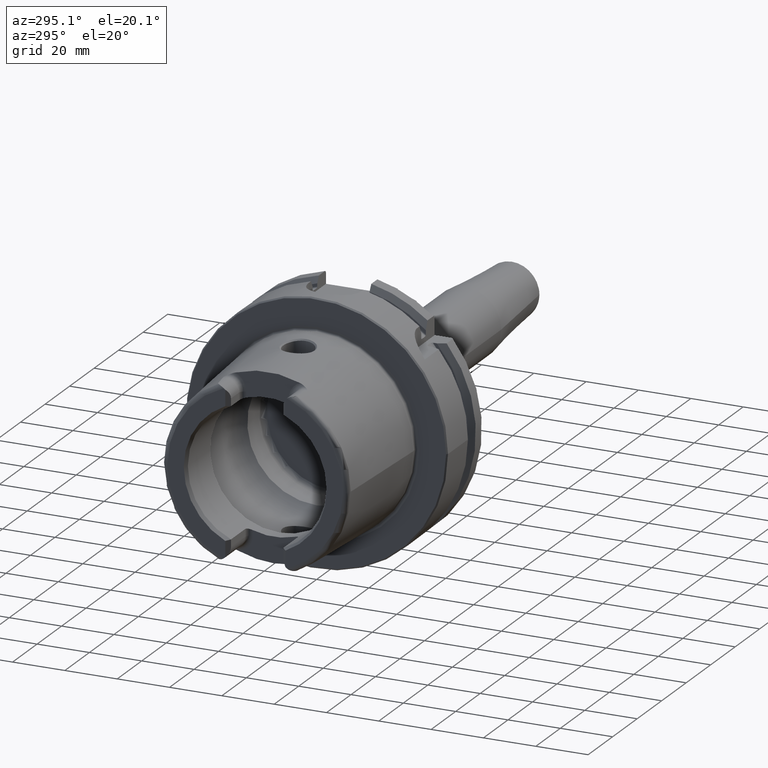
[diagram: clean part render]
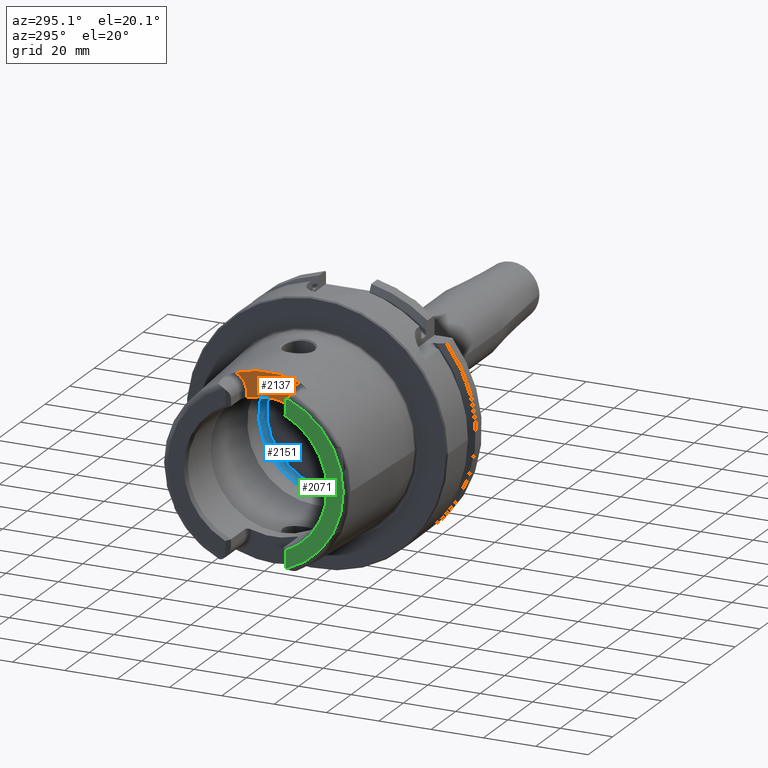
[diagram: same view with three faces highlighted in distinct colors, each labeled with its STEP entity id]
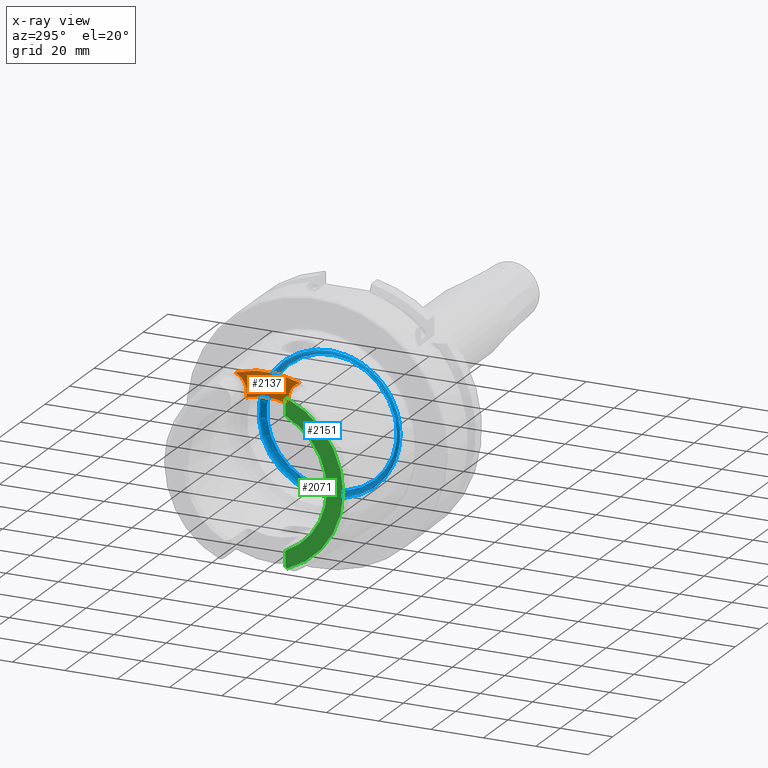
[diagram: x-ray of the same camera — body ghosted, the three highlighted faces saturated]
A machine part, auxiliary view with three faces highlighted in distinct colors.
The next image is the same camera in x-ray (body ghosted, the three faces saturated) — at least one of them is partly hidden behind the body in this view.
Their STEP definitions:

[orange] entity #2137 — the highlighted planar face has unit normal (-1, 0, 0).
#129=PLANE('',#2399);
#307=FACE_OUTER_BOUND('',#441,.T.);
#441=EDGE_LOOP('',(#1876,#1877,#1878,#1879,#1880,#1881));
#565=LINE('',#4469,#673);
#566=LINE('',#4498,#674);
#673=VECTOR('',#2915,10.);
#674=VECTOR('',#2928,10.);
#742=CIRCLE('',#2286,36.003493987976);
#785=CIRCLE('',#2372,6.88);
#787=CIRCLE('',#2375,6.88);
#799=CIRCLE('',#2400,26.5);
#922=VERTEX_POINT('',#3647);
#923=VERTEX_POINT('',#3664);
#1014=VERTEX_POINT('',#4466);
#1015=VERTEX_POINT('',#4468);
#1016=VERTEX_POINT('',#4483);
#1017=VERTEX_POINT('',#4487);
#1163=EDGE_CURVE('',#922,#923,#742,.T.);
#1301=EDGE_CURVE('',#1014,#1015,#565,.T.);
#1303=EDGE_CURVE('',#923,#1014,#785,.T.);
#1305=EDGE_CURVE('',#1016,#922,#787,.T.);
#1307=EDGE_CURVE('',#1017,#1016,#566,.T.);
#1328=EDGE_CURVE('',#1015,#1017,#799,.T.);
#1876=ORIENTED_EDGE('',*,*,#1303,.F.);
#1877=ORIENTED_EDGE('',*,*,#1163,.F.);
#1878=ORIENTED_EDGE('',*,*,#1305,.F.);
#1879=ORIENTED_EDGE('',*,*,#1307,.F.);
#1880=ORIENTED_EDGE('',*,*,#1328,.F.);
#1881=ORIENTED_EDGE('',*,*,#1301,.F.);
#2137=ADVANCED_FACE('',(#307),#129,.T.);
#2286=AXIS2_PLACEMENT_3D('',#3665,#2696,#2697);
#2372=AXIS2_PLACEMENT_3D('',#4481,#2918,#2919);
#2375=AXIS2_PLACEMENT_3D('',#4485,#2924,#2925);
#2399=AXIS2_PLACEMENT_3D('',#4556,#2980,#2981);
#2400=AXIS2_PLACEMENT_3D('',#4557,#2982,#2983);
#2696=DIRECTION('center_axis',(1.,0.,0.));
#2697=DIRECTION('ref_axis',(0.,1.,0.));
#2915=DIRECTION('',(0.,0.,-1.));
#2918=DIRECTION('center_axis',(-1.,0.,0.));
#2919=DIRECTION('ref_axis',(0.,0.564947834751706,0.82512662301574));
#2924=DIRECTION('center_axis',(-1.,0.,0.));
#2925=DIRECTION('ref_axis',(0.,-0.564947834751705,0.825126623015741));
#2928=DIRECTION('',(0.,0.,1.));
#2980=DIRECTION('center_axis',(-1.,0.,0.));
#2981=DIRECTION('ref_axis',(0.,0.,1.));
#2982=DIRECTION('center_axis',(-1.,0.,0.));
#2983=DIRECTION('ref_axis',(0.,1.,0.));
#3647=CARTESIAN_POINT('',(-40.,12.4227760464511,33.7923987701664));
#3664=CARTESIAN_POINT('',(-40.,-12.4227760464511,33.7923987701664));
#3665=CARTESIAN_POINT('Origin',(-40.,0.,0.));
#4466=CARTESIAN_POINT('',(-40.,-8.01,27.37));
#4468=CARTESIAN_POINT('',(-40.,-8.01,25.2604414054862));
#4469=CARTESIAN_POINT('',(-40.,-8.01,23.5));
#4481=CARTESIAN_POINT('Origin',(-40.,-14.89,27.37));
#4483=CARTESIAN_POINT('',(-40.,8.01,27.37));
#4485=CARTESIAN_POINT('Origin',(-40.,14.89,27.37));
#4487=CARTESIAN_POINT('',(-40.,8.01,25.2604414054862));
#4498=CARTESIAN_POINT('',(-40.,8.01,28.185));
#4556=CARTESIAN_POINT('Origin',(-40.,0.,29.));
#4557=CARTESIAN_POINT('Origin',(-40.,0.,0.));

[blue] entity #2151 — the highlighted toroidal blend (fillet) surface has major radius 24.9 mm and minor (blend) radius 2 mm.
#161=TOROIDAL_SURFACE('',#2427,24.9,2.);
#321=FACE_OUTER_BOUND('',#458,.T.);
#458=EDGE_LOOP('',(#1949,#1950,#1951,#1952,#1953));
#812=CIRCLE('',#2426,24.9);
#813=CIRCLE('',#2428,2.);
#814=CIRCLE('',#2429,26.5);
#815=CIRCLE('',#2430,26.5);
#1034=VERTEX_POINT('',#4607);
#1035=VERTEX_POINT('',#4610);
#1036=VERTEX_POINT('',#4612);
#1346=EDGE_CURVE('',#1034,#1034,#812,.T.);
#1347=EDGE_CURVE('',#1034,#1035,#813,.T.);
#1348=EDGE_CURVE('',#1035,#1036,#814,.T.);
#1349=EDGE_CURVE('',#1036,#1035,#815,.T.);
#1949=ORIENTED_EDGE('',*,*,#1346,.F.);
#1950=ORIENTED_EDGE('',*,*,#1347,.T.);
#1951=ORIENTED_EDGE('',*,*,#1348,.T.);
#1952=ORIENTED_EDGE('',*,*,#1349,.T.);
#1953=ORIENTED_EDGE('',*,*,#1347,.F.);
#2151=ADVANCED_FACE('',(#321),#161,.F.);
#2426=AXIS2_PLACEMENT_3D('',#4608,#3038,#3039);
#2427=AXIS2_PLACEMENT_3D('',#4609,#3040,#3041);
#2428=AXIS2_PLACEMENT_3D('',#4611,#3042,#3043);
#2429=AXIS2_PLACEMENT_3D('',#4613,#3044,#3045);
#2430=AXIS2_PLACEMENT_3D('',#4614,#3046,#3047);
#3038=DIRECTION('center_axis',(-1.,0.,0.));
#3039=DIRECTION('ref_axis',(0.,0.,1.));
#3040=DIRECTION('center_axis',(-1.,0.,0.));
#3041=DIRECTION('ref_axis',(0.,0.,1.));
#3042=DIRECTION('center_axis',(0.,1.,-1.22464679914735E-16));
#3043=DIRECTION('ref_axis',(0.,-1.22464679914735E-16,-1.));
#3044=DIRECTION('center_axis',(-1.,0.,0.));
#3045=DIRECTION('ref_axis',(0.,0.,1.));
#3046=DIRECTION('center_axis',(-1.,0.,0.));
#3047=DIRECTION('ref_axis',(0.,0.,1.));
#4607=CARTESIAN_POINT('',(12.5,-3.04937052987691E-15,-24.9));
#4608=CARTESIAN_POINT('Origin',(12.5,0.,0.));
#4609=CARTESIAN_POINT('Origin',(10.5,0.,0.));
#4610=CARTESIAN_POINT('',(9.3,-3.24531401774049E-15,-26.5));
#4611=CARTESIAN_POINT('Origin',(10.5,-3.04937052987691E-15,-24.9));
#4612=CARTESIAN_POINT('',(9.3,-26.5,3.24531401774049E-15));
#4613=CARTESIAN_POINT('Origin',(9.3,0.,0.));
#4614=CARTESIAN_POINT('Origin',(9.3,0.,0.));

[green] entity #2071 — the highlighted planar face has unit normal (-1, 0, 0).
#107=PLANE('',#2265);
#241=FACE_OUTER_BOUND('',#372,.T.);
#372=EDGE_LOOP('',(#1498,#1499,#1500,#1501,#1502,#1503));
#502=LINE('',#3300,#610);
#504=LINE('',#3319,#612);
#610=VECTOR('',#2628,10.);
#612=VECTOR('',#2650,10.);
#729=CIRCLE('',#2261,27.3660254037844);
#732=CIRCLE('',#2266,4.88);
#733=CIRCLE('',#2267,33.6001839277785);
#734=CIRCLE('',#2268,4.88);
#886=VERTEX_POINT('',#3297);
#887=VERTEX_POINT('',#3299);
#889=VERTEX_POINT('',#3305);
#892=VERTEX_POINT('',#3313);
#893=VERTEX_POINT('',#3315);
#894=VERTEX_POINT('',#3317);
#1116=EDGE_CURVE('',#886,#887,#502,.T.);
#1119=EDGE_CURVE('',#887,#889,#729,.T.);
#1123=EDGE_CURVE('',#886,#892,#732,.T.);
#1124=EDGE_CURVE('',#893,#892,#733,.T.);
#1125=EDGE_CURVE('',#893,#894,#734,.T.);
#1126=EDGE_CURVE('',#889,#894,#504,.T.);
#1498=ORIENTED_EDGE('',*,*,#1116,.F.);
#1499=ORIENTED_EDGE('',*,*,#1123,.T.);
#1500=ORIENTED_EDGE('',*,*,#1124,.F.);
#1501=ORIENTED_EDGE('',*,*,#1125,.T.);
#1502=ORIENTED_EDGE('',*,*,#1126,.F.);
#1503=ORIENTED_EDGE('',*,*,#1119,.F.);
#2071=ADVANCED_FACE('',(#241),#107,.T.);
#2261=AXIS2_PLACEMENT_3D('',#3306,#2634,#2635);
#2265=AXIS2_PLACEMENT_3D('',#3312,#2642,#2643);
#2266=AXIS2_PLACEMENT_3D('',#3314,#2644,#2645);
#2267=AXIS2_PLACEMENT_3D('',#3316,#2646,#2647);
#2268=AXIS2_PLACEMENT_3D('',#3318,#2648,#2649);
#2628=DIRECTION('',(0.,0.,1.));
#2634=DIRECTION('center_axis',(-1.,0.,0.));
#2635=DIRECTION('ref_axis',(0.,-1.,0.));
#2642=DIRECTION('center_axis',(-1.,0.,0.));
#2643=DIRECTION('ref_axis',(0.,0.,1.));
#2644=DIRECTION('center_axis',(-1.,0.,0.));
#2645=DIRECTION('ref_axis',(0.,-1.,0.));
#2646=DIRECTION('center_axis',(1.,0.,0.));
#2647=DIRECTION('ref_axis',(0.,0.,-1.));
#2648=DIRECTION('center_axis',(-1.,0.,0.));
#2649=DIRECTION('ref_axis',(0.,0.477884921181369,-0.878422450821629));
#2650=DIRECTION('',(0.,0.,1.));
#3297=CARTESIAN_POINT('',(-50.,-11.51,-30.8899431813596));
#3299=CARTESIAN_POINT('',(-50.,-11.51,-24.8277918148307));
#3300=CARTESIAN_POINT('',(-50.,-11.51,-13.685));
#3305=CARTESIAN_POINT('',(-50.,-11.51,24.8277918148307));
#3306=CARTESIAN_POINT('Origin',(-50.,0.,0.));
#3312=CARTESIAN_POINT('Origin',(-50.,33.6001839277785,0.));
#3313=CARTESIAN_POINT('',(-50.,-12.0743049948301,-31.355757348091));
#3314=CARTESIAN_POINT('Origin',(-50.,-14.89,-27.37));
#3315=CARTESIAN_POINT('',(-50.,-12.0743049948301,31.355757348091));
#3316=CARTESIAN_POINT('Origin',(-50.,0.,0.));
#3317=CARTESIAN_POINT('',(-50.,-11.51,30.8899431813596));
#3318=CARTESIAN_POINT('Origin',(-50.,-14.89,27.37));
#3319=CARTESIAN_POINT('',(-50.,-11.51,9.));